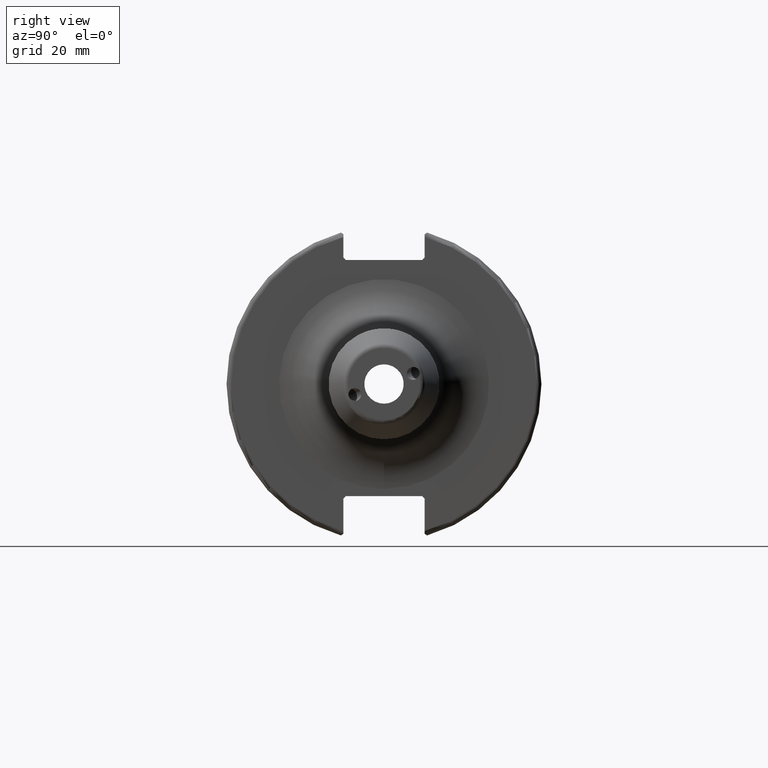
[diagram: clean part render]
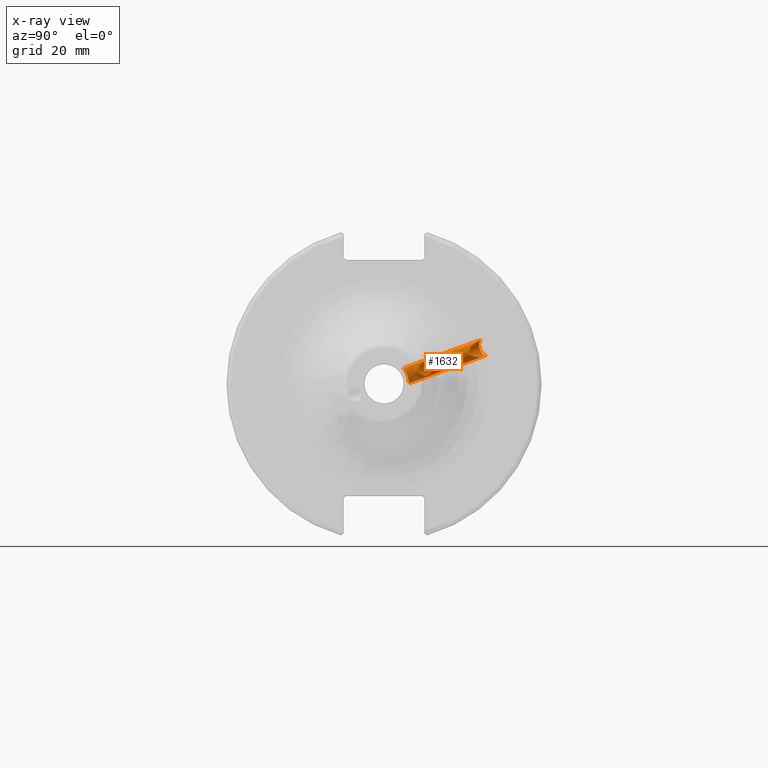
[diagram: x-ray — body ghosted, one internal face saturated and labeled with its STEP entity id]
A machine part, right view, then the same camera in x-ray: the body is ghosted and one INTERNAL B-rep face — a face not visible from any outside direction — is saturated and labeled: STEP entity #1632.
In plain terms, the highlighted cylindrical surface (bore or boss wall) has radius 1.621 mm, axis along (-0, 0.9397, 0.342).
Its self-contained STEP definition (entity closure, byte-faithful):
#55=FACE_BOUND('',#316,.T.);
#215=FACE_OUTER_BOUND('',#315,.T.);
#315=EDGE_LOOP('',(#1250,#1251,#1252,#1253,#1254,#1255,#1256,#1257,#1258));
#316=EDGE_LOOP('',(#1259,#1260));
#421=LINE('',#2932,#520);
#520=VECTOR('',#2112,1.621);
#586=B_SPLINE_CURVE_WITH_KNOTS('',3,(#2480,#2481,#2482,#2483,#2484,#2485,
#2486,#2487,#2488,#2489,#2490,#2491,#2492,#2493,#2494,#2495,#2496,#2497,
#2498,#2499,#2500,#2501,#2502,#2503,#2504,#2505,#2506,#2507,#2508,#2509,
#2510,#2511),.UNSPECIFIED.,.F.,.F.,(4,2,2,2,2,2,2,2,2,2,2,2,2,2,2,4),(0.,
0.0265147690102974,0.0530295380205949,0.10605907604119,0.156780420213552,
0.207501764385913,0.258223108558275,0.308944452730637,0.361973990751232,
0.388488759761529,0.415003528771827,0.442196540947808,0.469389553123789,
0.523775577475752,0.575987573240152,0.583354817799237),.UNSPECIFIED.);
#587=B_SPLINE_CURVE_WITH_KNOTS('',3,(#2512,#2513,#2514,#2515,#2516,#2517,
#2518,#2519,#2520,#2521,#2522,#2523,#2524,#2525),.UNSPECIFIED.,.F.,.F.,
(4,2,2,2,2,2,4),(0.583354817799237,0.628199569004553,0.680411564768954,
0.732623560533355,0.787009584885317,0.814202597061298,0.84139560923728),
 .UNSPECIFIED.);
#595=B_SPLINE_CURVE_WITH_KNOTS('',3,(#2678,#2679,#2680,#2681,#2682,#2683,
#2684,#2685,#2686,#2687,#2688,#2689,#2690,#2691,#2692,#2693,#2694,#2695,
#2696,#2697,#2698,#2699,#2700,#2701,#2702,#2703),.UNSPECIFIED.,.F.,.F.,
(4,2,2,2,2,2,2,2,2,2,2,2,4),(0.,0.0615571381436267,0.123114276287253,0.1846460218033,
0.246177767319346,0.307709512835392,0.369241258351438,0.430798396495065,
0.492355534638691,0.553912672782318,0.615469810925944,0.67700155644199,
0.738533301958036),.UNSPECIFIED.);
#596=B_SPLINE_CURVE_WITH_KNOTS('',3,(#2704,#2705,#2706,#2707,#2708,#2709,
#2710,#2711,#2712,#2713),.UNSPECIFIED.,.F.,.F.,(4,2,2,2,4),(0.738533301958036,
0.800065047474083,0.861596792990129,0.923153931133755,0.984711069277382),
 .UNSPECIFIED.);
#639=ELLIPSE('',#1797,3.51056820429453,1.621);
#640=ELLIPSE('',#1798,1.82748613587034,1.621);
#641=ELLIPSE('',#1799,1.82748613587034,1.621);
#642=ELLIPSE('',#1800,1.82748613587034,1.621);
#643=ELLIPSE('',#1801,3.51056820429453,1.621);
#655=VERTEX_POINT('',#2477);
#656=VERTEX_POINT('',#2479);
#671=VERTEX_POINT('',#2676);
#672=VERTEX_POINT('',#2677);
#724=VERTEX_POINT('',#2920);
#725=VERTEX_POINT('',#2922);
#726=VERTEX_POINT('',#2926);
#727=VERTEX_POINT('',#2928);
#728=VERTEX_POINT('',#2930);
#825=EDGE_CURVE('',#656,#655,#586,.T.);
#826=EDGE_CURVE('',#655,#656,#587,.T.);
#846=EDGE_CURVE('',#671,#672,#595,.T.);
#847=EDGE_CURVE('',#672,#671,#596,.T.);
#922=EDGE_CURVE('',#724,#726,#639,.T.);
#923=EDGE_CURVE('',#727,#724,#640,.T.);
#924=EDGE_CURVE('',#728,#727,#641,.T.);
#925=EDGE_CURVE('',#728,#672,#421,.T.);
#926=EDGE_CURVE('',#725,#728,#642,.T.);
#927=EDGE_CURVE('',#726,#725,#643,.T.);
#1250=ORIENTED_EDGE('',*,*,#922,.F.);
#1251=ORIENTED_EDGE('',*,*,#923,.F.);
#1252=ORIENTED_EDGE('',*,*,#924,.F.);
#1253=ORIENTED_EDGE('',*,*,#925,.T.);
#1254=ORIENTED_EDGE('',*,*,#847,.T.);
#1255=ORIENTED_EDGE('',*,*,#846,.T.);
#1256=ORIENTED_EDGE('',*,*,#925,.F.);
#1257=ORIENTED_EDGE('',*,*,#926,.F.);
#1258=ORIENTED_EDGE('',*,*,#927,.F.);
#1259=ORIENTED_EDGE('',*,*,#825,.T.);
#1260=ORIENTED_EDGE('',*,*,#826,.T.);
#1585=CYLINDRICAL_SURFACE('',#1796,1.621);
#1632=ADVANCED_FACE('',(#215,#55),#1585,.F.);
#1796=AXIS2_PLACEMENT_3D('',#2925,#2104,#2105);
#1797=AXIS2_PLACEMENT_3D('',#2927,#2106,#2107);
#1798=AXIS2_PLACEMENT_3D('',#2929,#2108,#2109);
#1799=AXIS2_PLACEMENT_3D('',#2931,#2110,#2111);
#1800=AXIS2_PLACEMENT_3D('',#2933,#2113,#2114);
#1801=AXIS2_PLACEMENT_3D('',#2934,#2115,#2116);
#2104=DIRECTION('center_axis',(-1.36081358570298E-16,0.939692620785908,
0.342020143325669));
#2105=DIRECTION('ref_axis',(1.,1.44814757038836E-16,0.));
#2106=DIRECTION('center_axis',(-0.887010833178222,-0.433901764515088,-0.157927326879075));
#2107=DIRECTION('ref_axis',(0.461748613235034,-0.833517534494735,-0.303375572295036));
#2108=DIRECTION('center_axis',(0.461748613235033,-0.833517534494736,-0.303375572295036));
#2109=DIRECTION('ref_axis',(0.887010833178222,0.433901764515087,0.157927326879075));
#2110=DIRECTION('center_axis',(0.461748613235033,-0.833517534494736,-0.303375572295036));
#2111=DIRECTION('ref_axis',(0.887010833178222,0.433901764515087,0.157927326879075));
#2112=DIRECTION('',(1.36081358570298E-16,-0.939692620785908,-0.342020143325669));
#2113=DIRECTION('center_axis',(0.461748613235033,-0.833517534494736,-0.303375572295036));
#2114=DIRECTION('ref_axis',(0.887010833178222,0.433901764515087,0.157927326879075));
#2115=DIRECTION('center_axis',(-0.887010833178222,-0.433901764515088,-0.157927326879075));
#2116=DIRECTION('ref_axis',(0.461748613235034,-0.833517534494735,-0.303375572295036));
#2477=CARTESIAN_POINT('',(12.6932018165603,7.0216942140822,3.02783078879875));
#2479=CARTESIAN_POINT('',(12.1024186459012,8.80794411557791,1.82239837893182));
#2480=CARTESIAN_POINT('Ctrl Pts',(12.1024186459012,8.80794411557791,1.82239837893182));
#2481=CARTESIAN_POINT('Ctrl Pts',(12.1024186459012,8.89099655818064,1.85262699592232));
#2482=CARTESIAN_POINT('Ctrl Pts',(12.1148868132803,8.97018693588268,1.89108314917692));
#2483=CARTESIAN_POINT('Ctrl Pts',(12.1597088765027,9.11687289431474,1.98208117199226));
#2484=CARTESIAN_POINT('Ctrl Pts',(12.1919086253668,9.18440123180393,2.03464609576363));
#2485=CARTESIAN_POINT('Ctrl Pts',(12.3029013294876,9.36641510886682,2.20906801481291));
#2486=CARTESIAN_POINT('Ctrl Pts',(12.3949816412076,9.4604346332724,2.3490810236528));
#2487=CARTESIAN_POINT('Ctrl Pts',(12.5487310616685,9.58279240163133,2.63367269715735));
#2488=CARTESIAN_POINT('Ctrl Pts',(12.6231863189632,9.62180886842338,2.79775768594528));
#2489=CARTESIAN_POINT('Ctrl Pts',(12.7266577779225,9.63201426765712,3.13844191999776));
#2490=CARTESIAN_POINT('Ctrl Pts',(12.7551,9.60283959601376,3.3152260205208));
#2491=CARTESIAN_POINT('Ctrl Pts',(12.7551,9.48718811999042,3.63297583942154));
#2492=CARTESIAN_POINT('Ctrl Pts',(12.7266577779225,9.39590258567684,3.78715343470802));
#2493=CARTESIAN_POINT('Ctrl Pts',(12.6231863189632,9.16909719183954,4.04157279488282));
#2494=CARTESIAN_POINT('Ctrl Pts',(12.5487310616685,9.03373704653492,4.14218988731537));
#2495=CARTESIAN_POINT('Ctrl Pts',(12.3949816412076,8.75707355646244,4.28154969991145));
#2496=CARTESIAN_POINT('Ctrl Pts',(12.3029013294876,8.59505179496965,4.32837130194108));
#2497=CARTESIAN_POINT('Ctrl Pts',(12.1919086253668,8.34350482745246,4.3449899788199));
#2498=CARTESIAN_POINT('Ctrl Pts',(12.1597088765027,8.25798703806144,4.34185066793715));
#2499=CARTESIAN_POINT('Ctrl Pts',(12.1148868132803,8.0871266731493,4.31727128105453));
#2500=CARTESIAN_POINT('Ctrl Pts',(12.1024186459012,8.0017441855339,4.29582780996568));
#2501=CARTESIAN_POINT('Ctrl Pts',(12.1024186459012,7.83351483333547,4.23459733323557));
#2502=CARTESIAN_POINT('Ctrl Pts',(12.1154042223778,7.75234690760256,4.19499864707432));
#2503=CARTESIAN_POINT('Ctrl Pts',(12.1604306855434,7.6005020399481,4.1019286977123));
#2504=CARTESIAN_POINT('Ctrl Pts',(12.1923139717077,7.529801004164,4.04842057008298));
#2505=CARTESIAN_POINT('Ctrl Pts',(12.3015712989356,7.33613945367435,3.87148163360562));
#2506=CARTESIAN_POINT('Ctrl Pts',(12.3915161782682,7.23175638064234,3.73053765007588));
#2507=CARTESIAN_POINT('Ctrl Pts',(12.5438878481931,7.08896328826703,3.44304835519483));
#2508=CARTESIAN_POINT('Ctrl Pts',(12.6191187860014,7.0384603966563,3.27604119649858));
#2509=CARTESIAN_POINT('Ctrl Pts',(12.6795651348114,7.02329171619752,3.07732338100689));
#2510=CARTESIAN_POINT('Ctrl Pts',(12.6866168940272,7.02212690742626,3.05261348198116));
#2511=CARTESIAN_POINT('Ctrl Pts',(12.6932018165599,7.02169421408222,3.02783078878434));
#2512=CARTESIAN_POINT('Ctrl Pts',(12.6932018165599,7.02169421408222,3.02783078878434));
#2513=CARTESIAN_POINT('Ctrl Pts',(12.7332845381687,7.01906039010556,2.87697741318433));
#2514=CARTESIAN_POINT('Ctrl Pts',(12.7551,7.04472096913018,2.72314469962404));
#2515=CARTESIAN_POINT('Ctrl Pts',(12.7551,7.15537217749453,2.41913300320761));
#2516=CARTESIAN_POINT('Ctrl Pts',(12.725062550672,7.25332902345065,2.26435913542346));
#2517=CARTESIAN_POINT('Ctrl Pts',(12.6191187860014,7.49757216490351,2.01464198023349));
#2518=CARTESIAN_POINT('Ctrl Pts',(12.5438878481931,7.64360975672226,1.91916970733386));
#2519=CARTESIAN_POINT('Ctrl Pts',(12.3915161782682,7.93779016831919,1.79072576106171));
#2520=CARTESIAN_POINT('Ctrl Pts',(12.3015712989356,8.10834928764383,1.74985255169368));
#2521=CARTESIAN_POINT('Ctrl Pts',(12.1923139717077,8.37043679828098,1.73879270776125));
#2522=CARTESIAN_POINT('Ctrl Pts',(12.1604306855434,8.45899129532381,1.74324885372313));
#2523=CARTESIAN_POINT('Ctrl Pts',(12.1154042223778,8.63513542269071,1.76955713571577));
#2524=CARTESIAN_POINT('Ctrl Pts',(12.1024186459012,8.7227672059822,1.7913965191922));
#2525=CARTESIAN_POINT('Ctrl Pts',(12.1024186459012,8.80794411557791,1.82239837893182));
#2676=CARTESIAN_POINT('',(11.1341,4.9991070090308,0.0944939800153001));
#2677=CARTESIAN_POINT('',(9.5131,4.69846310392954,1.71010071662834));
#2678=CARTESIAN_POINT('Ctrl Pts',(11.1341,4.9991070090308,0.0944939800153001));
#2679=CARTESIAN_POINT('Ctrl Pts',(11.3392904604788,4.9991070090308,0.0944939800152996));
#2680=CARTESIAN_POINT('Ctrl Pts',(11.5570450588817,4.99884098678372,0.138360894305665));
#2681=CARTESIAN_POINT('Ctrl Pts',(11.9559278062023,4.99101167717621,0.312020890824149));
#2682=CARTESIAN_POINT('Ctrl Pts',(12.1371995984301,4.98264433018653,0.441446631162811));
#2683=CARTESIAN_POINT('Ctrl Pts',(12.4233815482567,4.94810003706504,0.733422006592144));
#2684=CARTESIAN_POINT('Ctrl Pts',(12.5479092905,4.91949892098375,0.91594263274805));
#2685=CARTESIAN_POINT('Ctrl Pts',(12.7138079427904,4.83007600423685,1.30797031013204));
#2686=CARTESIAN_POINT('Ctrl Pts',(12.7551,4.76861342533113,1.51736429260999));
#2687=CARTESIAN_POINT('Ctrl Pts',(12.7551,4.62831278252795,1.90283714064669));
#2688=CARTESIAN_POINT('Ctrl Pts',(12.7138079427904,4.54079999207869,2.10274962152646));
#2689=CARTESIAN_POINT('Ctrl Pts',(12.5479092905,4.35731138686353,2.46054018824225));
#2690=CARTESIAN_POINT('Ctrl Pts',(12.4233815482567,4.26189911589935,2.61874354270383));
#2691=CARTESIAN_POINT('Ctrl Pts',(12.1371995984301,4.10068342602699,2.86461430018292));
#2692=CARTESIAN_POINT('Ctrl Pts',(11.9559278062023,4.02389992342789,2.96913859633683));
#2693=CARTESIAN_POINT('Ctrl Pts',(11.5570450588817,3.91827102848589,3.10720245486998));
#2694=CARTESIAN_POINT('Ctrl Pts',(11.3392904604788,3.89027770436898,3.14097745660322));
#2695=CARTESIAN_POINT('Ctrl Pts',(10.9289095395212,3.89027770436898,3.14097745660322));
#2696=CARTESIAN_POINT('Ctrl Pts',(10.7111549411183,3.91827102848589,3.10720245486998));
#2697=CARTESIAN_POINT('Ctrl Pts',(10.3122721937977,4.02389992342789,2.96913859633683));
#2698=CARTESIAN_POINT('Ctrl Pts',(10.13100040157,4.10068342602699,2.86461430018292));
#2699=CARTESIAN_POINT('Ctrl Pts',(9.84481845174331,4.26189911589935,2.61874354270383));
#2700=CARTESIAN_POINT('Ctrl Pts',(9.72029070950005,4.35731138686353,2.46054018824225));
#2701=CARTESIAN_POINT('Ctrl Pts',(9.5543920572096,4.54079999207869,2.10274962152646));
#2702=CARTESIAN_POINT('Ctrl Pts',(9.5131,4.62831278252795,1.90283714064669));
#2703=CARTESIAN_POINT('Ctrl Pts',(9.5131,4.69846310392954,1.71010071662834));
#2704=CARTESIAN_POINT('Ctrl Pts',(9.5131,4.69846310392954,1.71010071662834));
#2705=CARTESIAN_POINT('Ctrl Pts',(9.5131,4.76861342533113,1.51736429260999));
#2706=CARTESIAN_POINT('Ctrl Pts',(9.5543920572096,4.83007600423685,1.30797031013204));
#2707=CARTESIAN_POINT('Ctrl Pts',(9.72029070950005,4.91949892098376,0.91594263274805));
#2708=CARTESIAN_POINT('Ctrl Pts',(9.84481845174331,4.94810003706504,0.733422006592143));
#2709=CARTESIAN_POINT('Ctrl Pts',(10.13100040157,4.98264433018653,0.441446631162811));
#2710=CARTESIAN_POINT('Ctrl Pts',(10.3122721937977,4.99101167717621,0.312020890824152));
#2711=CARTESIAN_POINT('Ctrl Pts',(10.7111549411183,4.99884098678372,0.138360894305669));
#2712=CARTESIAN_POINT('Ctrl Pts',(10.9289095395212,4.9991070090308,0.0944939800153009));
#2713=CARTESIAN_POINT('Ctrl Pts',(11.1341,4.9991070090308,0.0944939800153003));
#2920=CARTESIAN_POINT('',(11.1341,20.6891879362938,5.80521641076687));
#2922=CARTESIAN_POINT('',(11.1341,19.5803586316319,8.85169988735479));
#2925=CARTESIAN_POINT('Origin',(11.1341,14.5182509911423,5.28421121438158));
#2926=CARTESIAN_POINT('',(11.7923034549955,19.4532815388834,5.50399160474636));
#2927=CARTESIAN_POINT('Origin',(11.1341,20.1347732839629,7.32845814906083));
#2928=CARTESIAN_POINT('',(10.4758965450045,20.3194507688444,5.81925142228942));
#2929=CARTESIAN_POINT('Origin',(11.1341,20.1347732839628,7.32845814906083));
#2930=CARTESIAN_POINT('',(9.5131,19.3418238249819,7.03984814871426));
#2931=CARTESIAN_POINT('Origin',(11.1341,20.1347732839628,7.32845814906083));
#2932=CARTESIAN_POINT('',(9.5131,14.5182509911423,5.28421121438158));
#2933=CARTESIAN_POINT('Origin',(11.1341,20.1347732839628,7.32845814906083));
#2934=CARTESIAN_POINT('Origin',(11.1341,20.1347732839629,7.32845814906083));